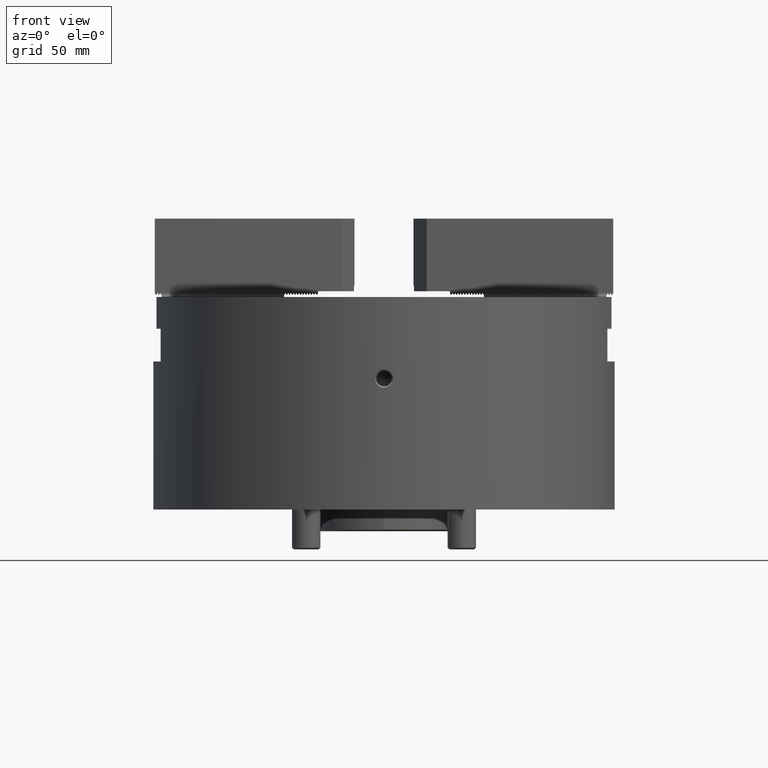
[diagram: clean part render]
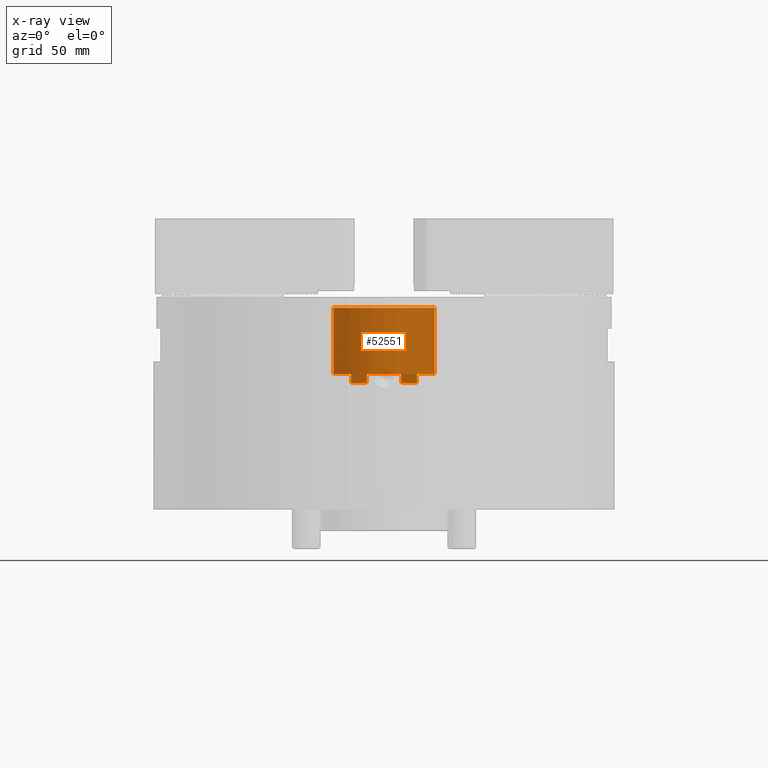
[diagram: x-ray — body ghosted, one internal face saturated and labeled with its STEP entity id]
A machine part, front view, then the same camera in x-ray: the body is ghosted and one INTERNAL B-rep face — a face not visible from any outside direction — is saturated and labeled: STEP entity #52551.
In plain terms, the highlighted cylindrical surface (bore or boss wall) has radius 28 mm, axis along (0, 0, -1).
Its self-contained STEP definition (entity closure, byte-faithful):
#1205=CYLINDRICAL_SURFACE('',#56094,28.);
#1946=CIRCLE('',#55976,28.);
#1966=CIRCLE('',#56008,28.);
#1968=CIRCLE('',#56016,28.);
#1970=CIRCLE('',#56019,28.);
#1997=CIRCLE('',#56081,28.);
#17294=ORIENTED_EDGE('',*,*,#25228,.T.);
#17295=ORIENTED_EDGE('',*,*,#25151,.T.);
#17296=ORIENTED_EDGE('',*,*,#25135,.T.);
#17297=ORIENTED_EDGE('',*,*,#25141,.T.);
#17298=ORIENTED_EDGE('',*,*,#25143,.T.);
#17299=ORIENTED_EDGE('',*,*,#25138,.T.);
#17300=ORIENTED_EDGE('',*,*,#25111,.T.);
#17301=ORIENTED_EDGE('',*,*,#25149,.T.);
#17302=ORIENTED_EDGE('',*,*,#25147,.T.);
#25111=EDGE_CURVE('',#30049,#30051,#1946,.T.);
#25135=EDGE_CURVE('',#30072,#30073,#1966,.T.);
#25138=EDGE_CURVE('',#30075,#30049,#36569,.T.);
#25141=EDGE_CURVE('',#30073,#30077,#36572,.T.);
#25143=EDGE_CURVE('',#30077,#30075,#1968,.T.);
#25147=EDGE_CURVE('',#30078,#30081,#1970,.T.);
#25149=EDGE_CURVE('',#30051,#30078,#36576,.T.);
#25151=EDGE_CURVE('',#30081,#30072,#36578,.T.);
#25228=EDGE_CURVE('',#30130,#30130,#1997,.T.);
#30049=VERTEX_POINT('',#86580);
#30051=VERTEX_POINT('',#86584);
#30072=VERTEX_POINT('',#86640);
#30073=VERTEX_POINT('',#86642);
#30075=VERTEX_POINT('',#86650);
#30077=VERTEX_POINT('',#86657);
#30078=VERTEX_POINT('',#86664);
#30081=VERTEX_POINT('',#86669);
#30130=VERTEX_POINT('',#86835);
#36569=LINE('',#86652,#43008);
#36572=LINE('',#86658,#43011);
#36576=LINE('',#86673,#43015);
#36578=LINE('',#86676,#43017);
#43008=VECTOR('',#69221,1000.);
#43011=VECTOR('',#69226,1000.);
#43015=VECTOR('',#69244,1000.);
#43017=VECTOR('',#69248,1000.);
#45632=EDGE_LOOP('',(#17294));
#45633=EDGE_LOOP('',(#17295,#17296,#17297,#17298,#17299,#17300,#17301,#17302));
#48323=FACE_BOUND('',#45632,.T.);
#48324=FACE_BOUND('',#45633,.T.);
#52551=ADVANCED_FACE('',(#48323,#48324),#1205,.T.);
#55976=AXIS2_PLACEMENT_3D('',#86585,#69141,#69142);
#56008=AXIS2_PLACEMENT_3D('',#86643,#69209,#69210);
#56016=AXIS2_PLACEMENT_3D('',#86661,#69231,#69232);
#56019=AXIS2_PLACEMENT_3D('',#86670,#69239,#69240);
#56081=AXIS2_PLACEMENT_3D('',#86834,#69417,#69418);
#56094=AXIS2_PLACEMENT_3D('',#86848,#69443,#69444);
#69141=DIRECTION('',(0.,0.,1.));
#69142=DIRECTION('',(-0.5,-0.866025403784438,0.));
#69209=DIRECTION('',(0.,0.,1.));
#69210=DIRECTION('',(-0.5,-0.866025403784438,0.));
#69221=DIRECTION('',(0.,0.,1.));
#69226=DIRECTION('',(0.,0.,-1.));
#69231=DIRECTION('',(0.,0.,1.));
#69232=DIRECTION('',(-0.5,-0.866025403784438,0.));
#69239=DIRECTION('',(0.,0.,1.));
#69240=DIRECTION('',(-0.5,-0.866025403784438,0.));
#69244=DIRECTION('',(0.,0.,-1.));
#69248=DIRECTION('',(0.,0.,1.));
#69417=DIRECTION('',(0.,0.,-1.));
#69418=DIRECTION('',(0.,-1.,0.));
#69443=DIRECTION('',(0.,0.,-1.));
#69444=DIRECTION('',(0.,-1.,0.));
#86580=CARTESIAN_POINT('',(-9.44485029503371,-26.3589605808803,-42.4));
#86584=CARTESIAN_POINT('',(18.1051043328782,21.3589605808802,-42.4));
#86585=CARTESIAN_POINT('',(0.,0.,-42.4));
#86640=CARTESIAN_POINT('',(9.44485029503371,26.3589605808803,-42.4));
#86642=CARTESIAN_POINT('',(-18.1051043328781,-21.3589605808803,-42.4));
#86643=CARTESIAN_POINT('',(0.,0.,-42.4));
#86650=CARTESIAN_POINT('',(-9.44485029503371,-26.3589605808803,-47.4));
#86652=CARTESIAN_POINT('',(-9.44485029503371,-26.3589605808803,-129.));
#86657=CARTESIAN_POINT('',(-18.1051043328781,-21.3589605808803,-47.4));
#86658=CARTESIAN_POINT('',(-18.1051043328781,-21.3589605808803,-129.));
#86661=CARTESIAN_POINT('',(0.,0.,-47.4));
#86664=CARTESIAN_POINT('',(18.1051043328781,21.3589605808803,-47.4));
#86669=CARTESIAN_POINT('',(9.44485029503371,26.3589605808803,-47.4));
#86670=CARTESIAN_POINT('',(0.,0.,-47.4));
#86673=CARTESIAN_POINT('',(18.1051043328781,21.3589605808803,-129.));
#86676=CARTESIAN_POINT('',(9.44485029503371,26.3589605808803,-129.));
#86834=CARTESIAN_POINT('',(-3.28006935848557E-14,0.,-6.00000000000001));
#86835=CARTESIAN_POINT('',(-3.28006935848557E-14,-28.,-6.00000000000001));
#86848=CARTESIAN_POINT('',(-3.28006935848557E-14,0.,-57.));